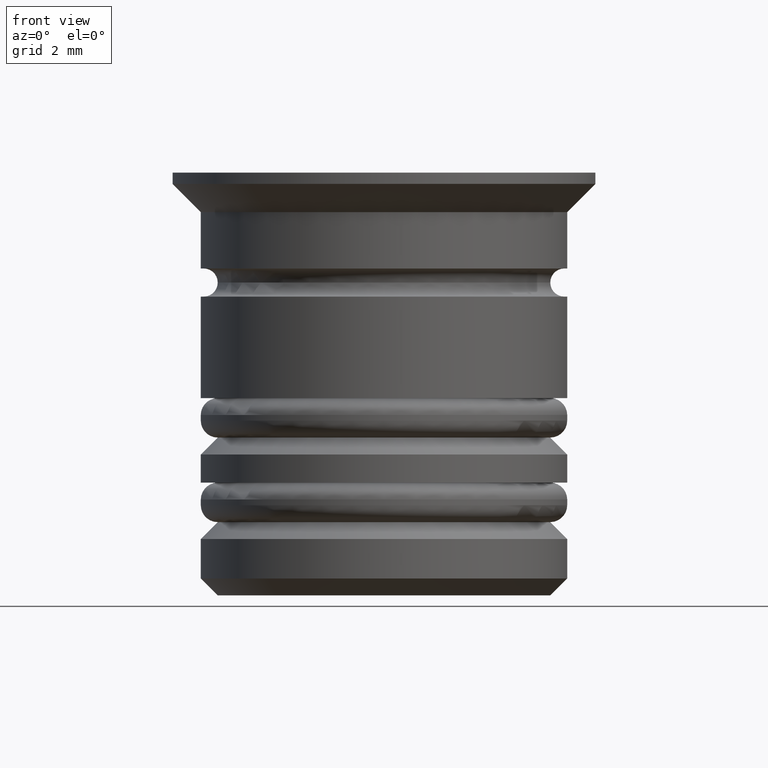
[diagram: clean part render]
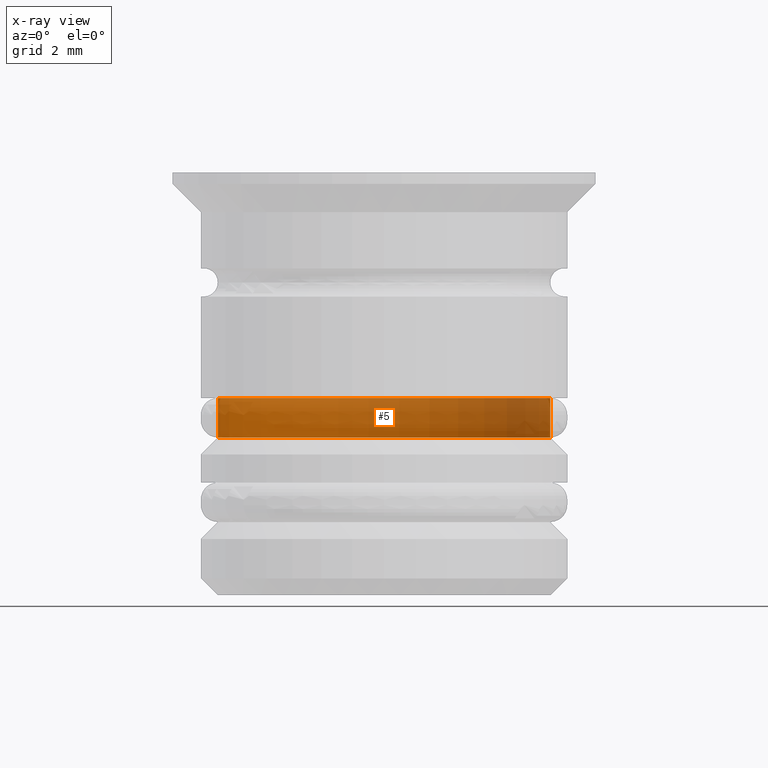
[diagram: x-ray — body ghosted, one internal face saturated and labeled with its STEP entity id]
A machine part, front view, then the same camera in x-ray: the body is ghosted and one INTERNAL B-rep face — a face not visible from any outside direction — is saturated and labeled: STEP entity #5.
In plain terms, the highlighted cylindrical surface (partial cylindrical patch) has radius 2.95 mm, axis along (-0, -0, 1).
Its self-contained STEP definition (entity closure, byte-faithful):
#3 = DIRECTION ( 'NONE',  ( -1.000000000000000000, 0.000000000000000000, 0.000000000000000000 ) ) ;
#5 = ADVANCED_FACE ( 'NONE', ( #512 ), #1758, .T. ) ;
#75 = DIRECTION ( 'NONE',  ( -0.000000000000000000, -0.000000000000000000, 1.000000000000000000 ) ) ;
#253 = EDGE_CURVE ( 'NONE', #296, #603, #365, .T. ) ;
#277 = EDGE_LOOP ( 'NONE', ( #941, #1174, #1638, #306 ) ) ;
#296 = VERTEX_POINT ( 'NONE', #1785 ) ;
#306 = ORIENTED_EDGE ( 'NONE', *, *, #777, .F. ) ;
#365 = LINE ( 'NONE', #929, #1486 ) ;
#477 = CARTESIAN_POINT ( 'NONE',  ( -2.950000000000000178, 3.612708057484692097E-16, -3.999999999999999112 ) ) ;
#495 = DIRECTION ( 'NONE',  ( -0.000000000000000000, -0.000000000000000000, 1.000000000000000000 ) ) ;
#512 = FACE_OUTER_BOUND ( 'NONE', #277, .T. ) ;
#513 = LINE ( 'NONE', #1067, #1157 ) ;
#603 = VERTEX_POINT ( 'NONE', #477 ) ;
#777 = EDGE_CURVE ( 'NONE', #1445, #1691, #513, .T. ) ;
#799 = AXIS2_PLACEMENT_3D ( 'NONE', #932, #1485, #1511 ) ;
#929 = CARTESIAN_POINT ( 'NONE',  ( -2.950000000000000178, 3.612708057484692097E-16, 0.000000000000000000 ) ) ;
#932 = CARTESIAN_POINT ( 'NONE',  ( 0.000000000000000000, 0.000000000000000000, -3.999999999999999112 ) ) ;
#941 = ORIENTED_EDGE ( 'NONE', *, *, #1535, .T. ) ;
#1067 = CARTESIAN_POINT ( 'NONE',  ( 2.950000000000000178, 0.000000000000000000, 0.000000000000000000 ) ) ;
#1102 = EDGE_CURVE ( 'NONE', #1691, #603, #1137, .T. ) ;
#1137 = CIRCLE ( 'NONE', #799, 2.950000000000000178 ) ;
#1157 = VECTOR ( 'NONE', #1484, 1000.000000000000000 ) ;
#1162 = CARTESIAN_POINT ( 'NONE',  ( 2.950000000000000178, 0.000000000000000000, -4.700000000000005507 ) ) ;
#1174 = ORIENTED_EDGE ( 'NONE', *, *, #253, .T. ) ;
#1324 = DIRECTION ( 'NONE',  ( -0.000000000000000000, -0.000000000000000000, 1.000000000000000000 ) ) ;
#1334 = CARTESIAN_POINT ( 'NONE',  ( 0.000000000000000000, 0.000000000000000000, 0.000000000000000000 ) ) ;
#1337 = AXIS2_PLACEMENT_3D ( 'NONE', #1334, #75, #1614 ) ;
#1372 = AXIS2_PLACEMENT_3D ( 'NONE', #1753, #495, #3 ) ;
#1445 = VERTEX_POINT ( 'NONE', #1162 ) ;
#1484 = DIRECTION ( 'NONE',  ( -0.000000000000000000, -0.000000000000000000, 1.000000000000000000 ) ) ;
#1485 = DIRECTION ( 'NONE',  ( -0.000000000000000000, -0.000000000000000000, 1.000000000000000000 ) ) ;
#1486 = VECTOR ( 'NONE', #1324, 1000.000000000000000 ) ;
#1511 = DIRECTION ( 'NONE',  ( 1.000000000000000000, 0.000000000000000000, 0.000000000000000000 ) ) ;
#1535 = EDGE_CURVE ( 'NONE', #1445, #296, #1603, .T. ) ;
#1603 = CIRCLE ( 'NONE', #1372, 2.950000000000000178 ) ;
#1614 = DIRECTION ( 'NONE',  ( 1.000000000000000000, 0.000000000000000000, 0.000000000000000000 ) ) ;
#1638 = ORIENTED_EDGE ( 'NONE', *, *, #1102, .F. ) ;
#1691 = VERTEX_POINT ( 'NONE', #1710 ) ;
#1710 = CARTESIAN_POINT ( 'NONE',  ( 2.950000000000000178, 0.000000000000000000, -3.999999999999999112 ) ) ;
#1753 = CARTESIAN_POINT ( 'NONE',  ( 0.000000000000000000, 0.000000000000000000, -4.700000000000005507 ) ) ;
#1758 = CYLINDRICAL_SURFACE ( 'NONE', #1337, 2.950000000000000178 ) ;
#1785 = CARTESIAN_POINT ( 'NONE',  ( -2.950000000000000178, 3.612708057484692097E-16, -4.700000000000005507 ) ) ;